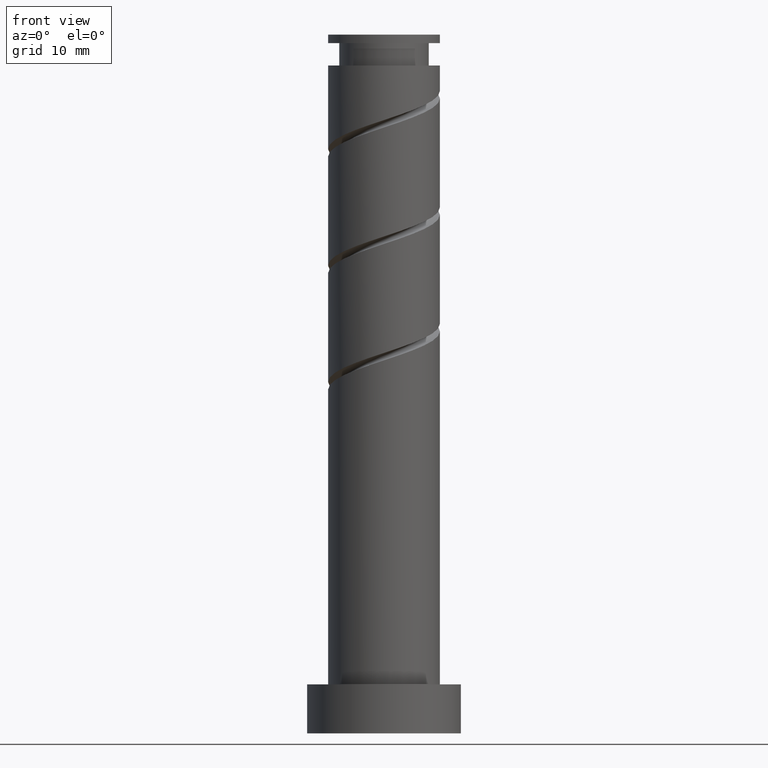
[diagram: clean part render]
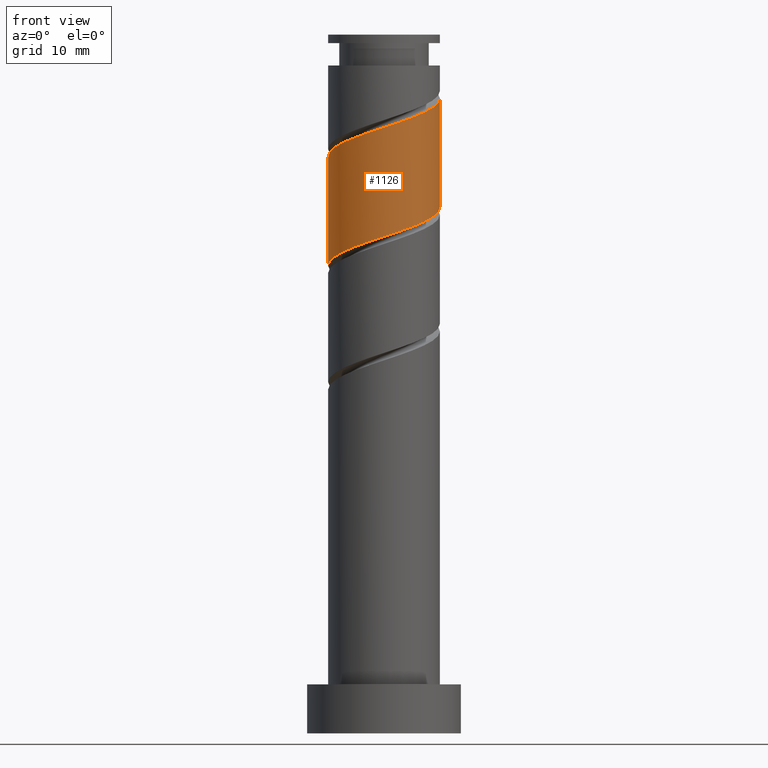
[diagram: same view with one face highlighted and labeled with its STEP entity id]
A machine part, front view. The second image highlights one B-rep face of the part: STEP entity #1126.
In plain terms, the highlighted cylindrical surface (partial cylindrical patch) has radius 8 mm, axis along (-0, -0, -1).
Its self-contained STEP definition (entity closure, byte-faithful):
#72 =( BOUNDED_CURVE ( )  B_SPLINE_CURVE ( 2, ( #1046, #496, #1393, #586, #473, #718, #813, #362, #255, #248, #595, #821, #1278, #378, #368, #711, #264, #489, #481, #944, #1165 ),
 .UNSPECIFIED., .F., .T. ) 
 B_SPLINE_CURVE_WITH_KNOTS ( ( 3, 2, 2, 2, 2, 2, 2, 2, 2, 2, 3 ),
 ( 0.5545248053855290626, 0.5555555555555555802, 0.5694444444444444198, 0.5833333333333333703, 0.5972222222222222099, 0.6111111111111111605, 0.6250000000000000000, 0.6388888888888888395, 0.6527777777777777901, 0.6666666666666666297, 0.6795248053855290626 ),
 .UNSPECIFIED. ) 
 CURVE ( )  GEOMETRIC_REPRESENTATION_ITEM ( )  RATIONAL_B_SPLINE_CURVE ( ( 0.9071930855141200345, 0.9080659294509676460, 0.9090909090909077284, 0.8952797754656424134, 0.9090909090909077284, 0.8952797754656424134, 0.9090909090909077284, 0.8952797754656424134, 0.9090909090909077284, 0.8952797754656424134, 0.9090909090909077284, 0.8952797754656424134, 0.9090909090909077284, 0.8952797754656424134, 0.9090909090909077284, 0.8952797754656424134, 0.9090909090909077284, 0.8952797754656424134, 0.9090909090909077284, 0.8963047551055824957, 0.9071930855141200345 ) ) 
 REPRESENTATION_ITEM ( '' )  );
#82 = FACE_OUTER_BOUND ( 'NONE', #1048, .T. ) ;
#84 = LINE ( 'NONE', #1163, #784 ) ;
#92 = CARTESIAN_POINT ( 'NONE',  ( -7.997337192023810104, -0.2063924346310191116, 82.62576103051947030 ) ) ;
#110 = EDGE_CURVE ( 'NONE', #1403, #1317, #1366, .T. ) ;
#127 = CARTESIAN_POINT ( 'NONE',  ( -8.000000000000012434, -5.094187592490750696E-15, 82.55786910516033572 ) ) ;
#136 = VERTEX_POINT ( 'NONE', #801 ) ;
#148 = CARTESIAN_POINT ( 'NONE',  ( 1.591979899370592699, -7.840000000000012292, 87.25539066014908940 ) ) ;
#162 = CARTESIAN_POINT ( 'NONE',  ( -2.580508690206639422, -7.702649671627098904, 85.86650177126018946 ) ) ;
#248 = CARTESIAN_POINT ( 'NONE',  ( 2.580508690206632760, -7.702649671627087358, 71.97761288237131794 ) ) ;
#255 = CARTESIAN_POINT ( 'NONE',  ( 3.819927504472515167, -7.029093388238227824, 72.44057584533426564 ) ) ;
#260 = CARTESIAN_POINT ( 'NONE',  ( 6.258982215412427941, -4.982483479867354959, 89.10724251200095125 ) ) ;
#264 = CARTESIAN_POINT ( 'NONE',  ( -6.258982215412419947, -4.982483479867345189, 68.73687214163058457 ) ) ;
#276 = CARTESIAN_POINT ( 'NONE',  ( -1.185466159795207641, -7.911679340315846076, 86.32946473422317979 ) ) ;
#324 = CARTESIAN_POINT ( 'NONE',  ( -5.059346318738405124, -6.355537104849376284, 84.94057584533426564 ) ) ;
#341 = CARTESIAN_POINT ( 'NONE',  ( 8.000000000000000000, 9.797174393178823685E-16, 100.0000000000000000 ) ) ;
#360 = DIRECTION ( 'NONE',  ( -0.000000000000000000, -0.000000000000000000, -1.000000000000000000 ) ) ;
#362 = CARTESIAN_POINT ( 'NONE',  ( 5.059346318738395354, -6.355537104849367402, 72.90353880829722755 ) ) ;
#368 = CARTESIAN_POINT ( 'NONE',  ( -4.177409687551282502, -6.822700953607207630, 69.66279806755647996 ) ) ;
#375 = CARTESIAN_POINT ( 'NONE',  ( 5.380435946977609518, -6.086110916219010569, 88.64427954903798934 ) ) ;
#378 = CARTESIAN_POINT ( 'NONE',  ( -2.974383428124960815, -7.559290990995414461, 70.12576103051944187 ) ) ;
#390 = CARTESIAN_POINT ( 'NONE',  ( 8.000000000000015987, -1.304434974563651206, 90.46128292612803534 ) ) ;
#395 = ORIENTED_EDGE ( 'NONE', *, *, #754, .T. ) ;
#424 = DIRECTION ( 'NONE',  ( -0.000000000000000000, -0.000000000000000000, -1.000000000000000000 ) ) ;
#439 = EDGE_CURVE ( 'NONE', #1317, #136, #72, .T. ) ;
#473 = CARTESIAN_POINT ( 'NONE',  ( 7.444448375207623592, -2.929195860448488009, 74.29242769718615591 ) ) ;
#481 = CARTESIAN_POINT ( 'NONE',  ( -7.585629115355295049, -2.541304964830870539, 67.81094621570464653 ) ) ;
#489 = CARTESIAN_POINT ( 'NONE',  ( -7.137528483847234817, -3.878856043515695351, 68.27390917866762265 ) ) ;
#493 = CARTESIAN_POINT ( 'NONE',  ( 8.000000000000000000, 2.689013978440883927E-16, 75.28624554847118588 ) ) ;
#494 = CARTESIAN_POINT ( 'NONE',  ( 7.585629115355304819, -2.541304964830880753, 90.03316843792688928 ) ) ;
#496 = CARTESIAN_POINT ( 'NONE',  ( 8.000000000000000000, -0.1032133946561704513, 75.25222817453882840 ) ) ;
#586 = CARTESIAN_POINT ( 'NONE',  ( 7.960944637184240058, -1.616538755408091443, 74.75539066014906098 ) ) ;
#595 = CARTESIAN_POINT ( 'NONE',  ( 1.185466159795203644, -7.911679340315834530, 71.51464991940832761 ) ) ;
#687 = CARTESIAN_POINT ( 'NONE',  ( 8.000000000000012434, 4.944797927021814788E-15, 90.89120243849369274 ) ) ;
#711 = CARTESIAN_POINT ( 'NONE',  ( -5.380435946977605965, -6.086110916218999911, 69.19983510459354648 ) ) ;
#718 = CARTESIAN_POINT ( 'NONE',  ( 6.927952113231004461, -4.241852965488891236, 73.82946473422315137 ) ) ;
#754 = EDGE_CURVE ( 'NONE', #1092, #136, #84, .T. ) ;
#776 = CARTESIAN_POINT ( 'NONE',  ( 0.000000000000000000, 0.000000000000000000, 100.0000000000000000 ) ) ;
#780 = DIRECTION ( 'NONE',  ( -0.000000000000000000, -0.000000000000000000, -1.000000000000000000 ) ) ;
#784 = VECTOR ( 'NONE', #360, 1000.000000000000000 ) ;
#786 = CARTESIAN_POINT ( 'NONE',  ( -3.819927504472524493, -7.029093388238236706, 85.40353880829724176 ) ) ;
#793 = AXIS2_PLACEMENT_3D ( 'NONE', #776, #424, #1214 ) ;
#801 = CARTESIAN_POINT ( 'NONE',  ( -8.000000000000000000, -3.077427108660123028E-15, 66.95291221513784308 ) ) ;
#813 = CARTESIAN_POINT ( 'NONE',  ( 5.993649215984701684, -5.298695035169131096, 73.36650177126021788 ) ) ;
#821 = CARTESIAN_POINT ( 'NONE',  ( -0.2095763706162300788, -8.120709009004581702, 71.05168695644539412 ) ) ;
#825 = CARTESIAN_POINT ( 'NONE',  ( 7.137528483847244587, -3.878856043515703345, 89.57020547496389895 ) ) ;
#834 = EDGE_CURVE ( 'NONE', #1092, #1403, #1415, .T. ) ;
#847 = CARTESIAN_POINT ( 'NONE',  ( 0.2095763706162234452, -8.120709009004595913, 86.79242769718609907 ) ) ;
#872 = CARTESIAN_POINT ( 'NONE',  ( -8.000000000000012434, -5.094187592490751485E-15, 82.55786910516033572 ) ) ;
#893 = VECTOR ( 'NONE', #780, 1000.000000000000000 ) ;
#944 = CARTESIAN_POINT ( 'NONE',  ( -7.999999999999998224, -1.304434974563651428, 67.38283172750345784 ) ) ;
#1007 = CARTESIAN_POINT ( 'NONE',  ( -7.960944637184254269, -1.616538755408090777, 83.08872399348241800 ) ) ;
#1046 = CARTESIAN_POINT ( 'NONE',  ( 8.000000000000000000, 2.689013978440883927E-16, 75.28624554847118588 ) ) ;
#1048 = EDGE_LOOP ( 'NONE', ( #1086, #1123, #395, #1244 ) ) ;
#1073 = CARTESIAN_POINT ( 'NONE',  ( 4.177409687551286943, -6.822700953607219176, 88.18131658607502743 ) ) ;
#1086 = ORIENTED_EDGE ( 'NONE', *, *, #110, .F. ) ;
#1092 = VERTEX_POINT ( 'NONE', #872 ) ;
#1119 = CARTESIAN_POINT ( 'NONE',  ( -8.000000000000012434, -0.1032133946561761551, 82.59188647909269321 ) ) ;
#1123 = ORIENTED_EDGE ( 'NONE', *, *, #834, .F. ) ;
#1126 = ADVANCED_FACE ( 'NONE', ( #82 ), #1229, .T. ) ;
#1163 = CARTESIAN_POINT ( 'NONE',  ( -8.000000000000000000, 0.000000000000000000, 100.0000000000000000 ) ) ;
#1165 = CARTESIAN_POINT ( 'NONE',  ( -8.000000000000000000, -3.077427108660123028E-15, 66.95291221513784308 ) ) ;
#1178 = CARTESIAN_POINT ( 'NONE',  ( 8.000000000000012434, 4.944797927021814788E-15, 90.89120243849369274 ) ) ;
#1214 = DIRECTION ( 'NONE',  ( -1.000000000000000000, 0.000000000000000000, 0.000000000000000000 ) ) ;
#1229 = CYLINDRICAL_SURFACE ( 'NONE', #793, 8.000000000000000000 ) ;
#1240 = CARTESIAN_POINT ( 'NONE',  ( -6.927952113231020448, -4.241852965488893012, 84.01464991940835603 ) ) ;
#1244 = ORIENTED_EDGE ( 'NONE', *, *, #439, .F. ) ;
#1278 = CARTESIAN_POINT ( 'NONE',  ( -1.591979899370593587, -7.839999999999999858, 70.58872399348244642 ) ) ;
#1297 = CARTESIAN_POINT ( 'NONE',  ( 2.974383428124958595, -7.559290990995431336, 87.71835362311206552 ) ) ;
#1317 = VERTEX_POINT ( 'NONE', #493 ) ;
#1356 = CARTESIAN_POINT ( 'NONE',  ( -5.993649215984714118, -5.298695035169131984, 84.47761288237131794 ) ) ;
#1366 = LINE ( 'NONE', #341, #893 ) ;
#1393 = CARTESIAN_POINT ( 'NONE',  ( 7.997337192023797670, -0.2063924346310234137, 75.21835362311206552 ) ) ;
#1403 = VERTEX_POINT ( 'NONE', #687 ) ;
#1415 =( BOUNDED_CURVE ( )  B_SPLINE_CURVE ( 2, ( #127, #1119, #92, #1007, #1469, #1240, #1356, #324, #786, #162, #276, #847, #148, #1297, #1073, #375, #260, #825, #494, #390, #1178 ),
 .UNSPECIFIED., .F., .T. ) 
 B_SPLINE_CURVE_WITH_KNOTS ( ( 3, 2, 2, 2, 2, 2, 2, 2, 2, 2, 3 ),
 ( 0.5545248053855291737, 0.5555555555555555802, 0.5694444444444444198, 0.5833333333333332593, 0.5972222222222222099, 0.6111111111111111605, 0.6250000000000000000, 0.6388888888888888395, 0.6527777777777777901, 0.6666666666666667407, 0.6795248053855291737 ),
 .UNSPECIFIED. ) 
 CURVE ( )  GEOMETRIC_REPRESENTATION_ITEM ( )  RATIONAL_B_SPLINE_CURVE ( ( 0.9071930855141263628, 0.9080659294509738633, 0.9090909090909138346, 0.8952797754656482976, 0.9090909090909138346, 0.8952797754656482976, 0.9090909090909138346, 0.8952797754656482976, 0.9090909090909138346, 0.8952797754656482976, 0.9090909090909138346, 0.8952797754656482976, 0.9090909090909138346, 0.8952797754656482976, 0.9090909090909138346, 0.8952797754656482976, 0.9090909090909138346, 0.8952797754656482976, 0.9090909090909138346, 0.8963047551055882689, 0.9071930855141263628 ) ) 
 REPRESENTATION_ITEM ( '' )  );
#1469 = CARTESIAN_POINT ( 'NONE',  ( -7.444448375207635138, -2.929195860448491118, 83.55168695644539412 ) ) ;